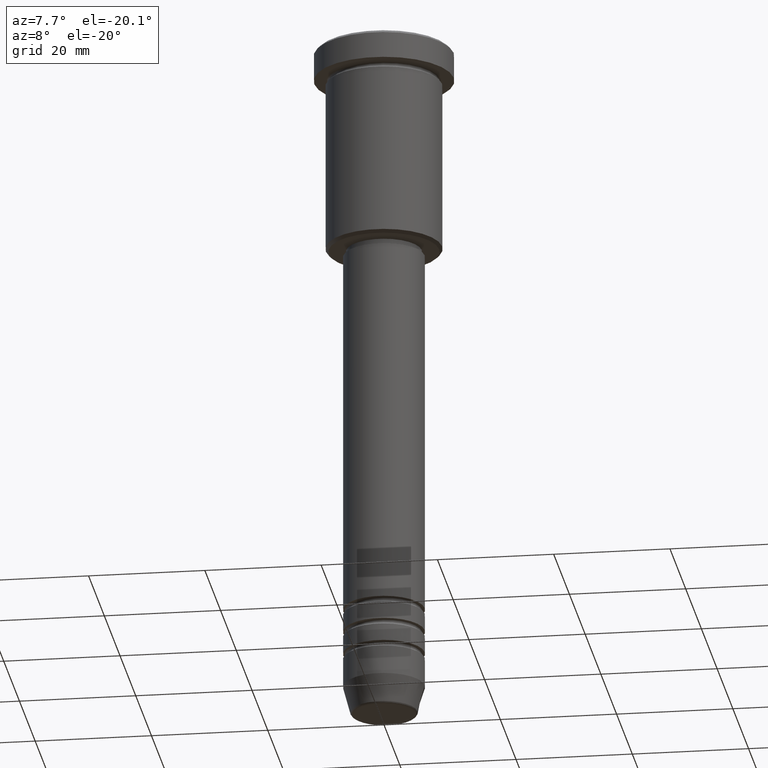
[diagram: clean part render]
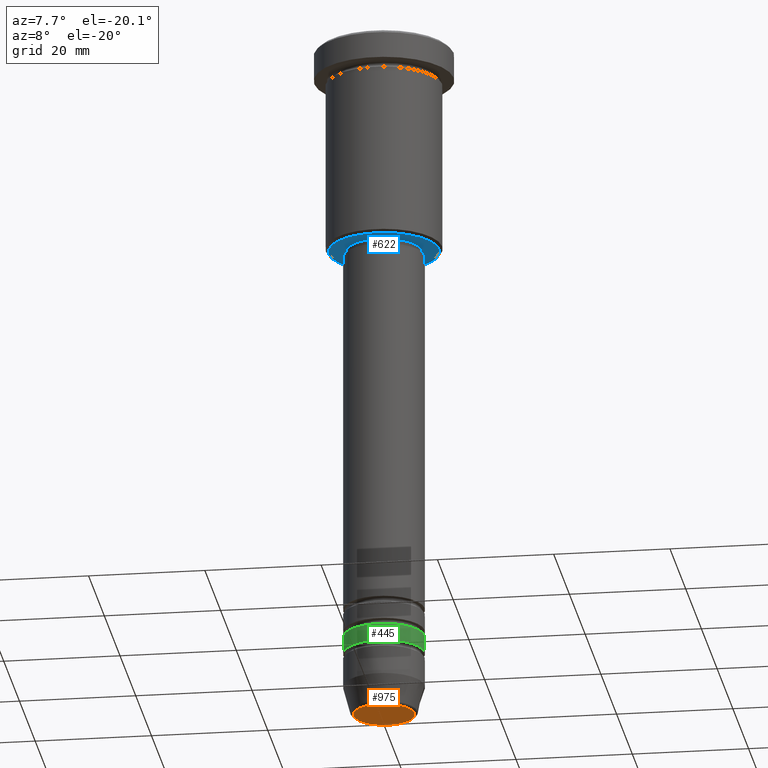
[diagram: same view with three faces highlighted in distinct colors, each labeled with its STEP entity id]
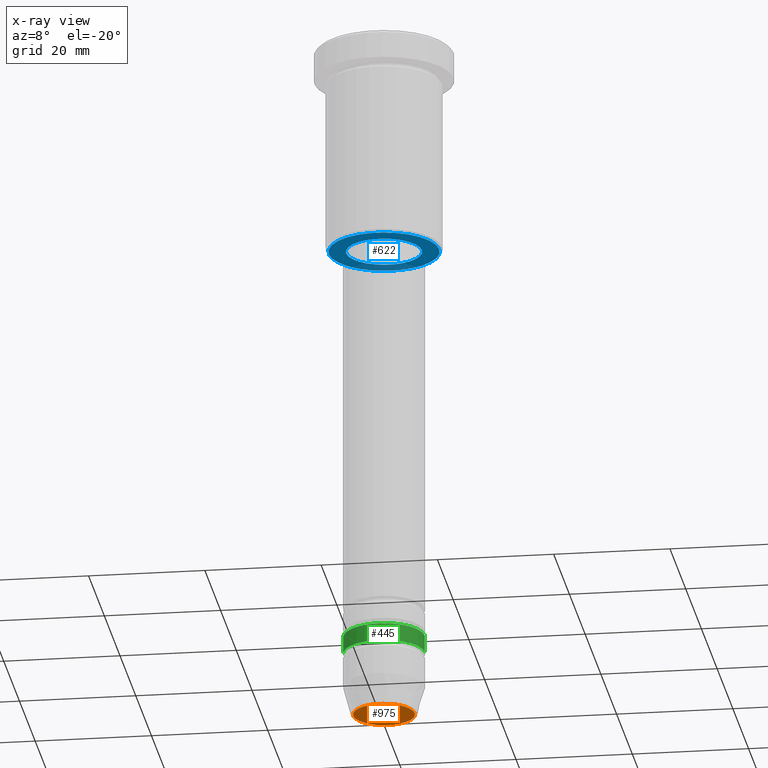
[diagram: x-ray of the same camera — body ghosted, the three highlighted faces saturated]
A machine part, auxiliary view with three faces highlighted in distinct colors.
The next image is the same camera in x-ray (body ghosted, the three faces saturated) — at least one of them is partly hidden behind the body in this view.
Their STEP definitions:

[orange] entity #975 — the highlighted planar face has unit normal (0, -0, 1).
#21 = EDGE_CURVE ( 'NONE', #681, #536, #1000, .T. ) ;
#53 = DIRECTION ( 'NONE',  ( 1.000000000000000000, 0.000000000000000000, 0.000000000000000000 ) ) ;
#83 = ORIENTED_EDGE ( 'NONE', *, *, #773, .T. ) ;
#132 = CARTESIAN_POINT ( 'NONE',  ( -5.276590543854903004, 6.757689212787765916E-16, -120.0000000000000000 ) ) ;
#140 = AXIS2_PLACEMENT_3D ( 'NONE', #1074, #261, #53 ) ;
#229 = DIRECTION ( 'NONE',  ( 1.000000000000000000, 0.000000000000000000, 0.000000000000000000 ) ) ;
#261 = DIRECTION ( 'NONE',  ( 0.000000000000000000, -0.000000000000000000, 1.000000000000000000 ) ) ;
#268 = PLANE ( 'NONE',  #140 ) ;
#432 = EDGE_LOOP ( 'NONE', ( #973, #83 ) ) ;
#536 = VERTEX_POINT ( 'NONE', #132 ) ;
#681 = VERTEX_POINT ( 'NONE', #1093 ) ;
#773 = EDGE_CURVE ( 'NONE', #536, #681, #1073, .T. ) ;
#846 = DIRECTION ( 'NONE',  ( 0.000000000000000000, 0.000000000000000000, -1.000000000000000000 ) ) ;
#927 = DIRECTION ( 'NONE',  ( 1.000000000000000000, 0.000000000000000000, 0.000000000000000000 ) ) ;
#973 = ORIENTED_EDGE ( 'NONE', *, *, #21, .T. ) ;
#975 = ADVANCED_FACE ( 'NONE', ( #1081 ), #268, .F. ) ;
#977 = DIRECTION ( 'NONE',  ( 0.000000000000000000, 0.000000000000000000, -1.000000000000000000 ) ) ;
#1000 = CIRCLE ( 'NONE', #1020, 5.276590543854903004 ) ;
#1020 = AXIS2_PLACEMENT_3D ( 'NONE', #1035, #846, #927 ) ;
#1035 = CARTESIAN_POINT ( 'NONE',  ( 0.000000000000000000, 0.000000000000000000, -120.0000000000000000 ) ) ;
#1057 = AXIS2_PLACEMENT_3D ( 'NONE', #1148, #977, #229 ) ;
#1073 = CIRCLE ( 'NONE', #1057, 5.276590543854903004 ) ;
#1074 = CARTESIAN_POINT ( 'NONE',  ( 0.000000000000000000, 0.000000000000000000, -120.0000000000000000 ) ) ;
#1081 = FACE_OUTER_BOUND ( 'NONE', #432, .T. ) ;
#1093 = CARTESIAN_POINT ( 'NONE',  ( 5.276590543854903004, 0.000000000000000000, -120.0000000000000000 ) ) ;
#1148 = CARTESIAN_POINT ( 'NONE',  ( 0.000000000000000000, 0.000000000000000000, -120.0000000000000000 ) ) ;

[blue] entity #622 — the highlighted planar face has unit normal (0, 0, -1).
#10 = AXIS2_PLACEMENT_3D ( 'NONE', #255, #988, #527 ) ;
#59 = CIRCLE ( 'NONE', #82, 6.500000000000000000 ) ;
#63 = PLANE ( 'NONE',  #863 ) ;
#70 = CARTESIAN_POINT ( 'NONE',  ( 0.000000000000000000, 9.999999999999998224, -36.00000000000000711 ) ) ;
#77 = ORIENTED_EDGE ( 'NONE', *, *, #485, .T. ) ;
#82 = AXIS2_PLACEMENT_3D ( 'NONE', #934, #682, #929 ) ;
#103 = CARTESIAN_POINT ( 'NONE',  ( 9.499999999999966249, 0.000000000000000000, -36.00000000000000711 ) ) ;
#116 = CARTESIAN_POINT ( 'NONE',  ( 6.500000000000000000, 0.000000000000000000, -36.00000000000000711 ) ) ;
#120 = DIRECTION ( 'NONE',  ( -1.000000000000000000, 0.000000000000000000, 0.000000000000000000 ) ) ;
#151 = VERTEX_POINT ( 'NONE', #103 ) ;
#178 = AXIS2_PLACEMENT_3D ( 'NONE', #400, #937, #120 ) ;
#215 = EDGE_CURVE ( 'NONE', #841, #870, #426, .T. ) ;
#232 = AXIS2_PLACEMENT_3D ( 'NONE', #893, #1060, #345 ) ;
#255 = CARTESIAN_POINT ( 'NONE',  ( 0.000000000000000000, 0.000000000000000000, -36.00000000000000711 ) ) ;
#262 = EDGE_LOOP ( 'NONE', ( #1078, #77 ) ) ;
#345 = DIRECTION ( 'NONE',  ( 1.000000000000000000, 0.000000000000000000, 0.000000000000000000 ) ) ;
#400 = CARTESIAN_POINT ( 'NONE',  ( 0.000000000000000000, 0.000000000000000000, -36.00000000000000711 ) ) ;
#426 = CIRCLE ( 'NONE', #232, 6.500000000000000000 ) ;
#435 = DIRECTION ( 'NONE',  ( 0.000000000000000000, 0.000000000000000000, -1.000000000000000000 ) ) ;
#439 = CARTESIAN_POINT ( 'NONE',  ( -9.499999999999966249, 1.194030629168667103E-15, -36.00000000000000711 ) ) ;
#472 = EDGE_CURVE ( 'NONE', #870, #841, #59, .T. ) ;
#485 = EDGE_CURVE ( 'NONE', #1010, #151, #693, .T. ) ;
#527 = DIRECTION ( 'NONE',  ( -1.000000000000000000, 0.000000000000000000, 0.000000000000000000 ) ) ;
#555 = ORIENTED_EDGE ( 'NONE', *, *, #472, .T. ) ;
#622 = ADVANCED_FACE ( 'NONE', ( #971, #886 ), #63, .T. ) ;
#682 = DIRECTION ( 'NONE',  ( -0.000000000000000000, -0.000000000000000000, 1.000000000000000000 ) ) ;
#693 = CIRCLE ( 'NONE', #178, 9.499999999999966249 ) ;
#801 = DIRECTION ( 'NONE',  ( -1.000000000000000000, 0.000000000000000000, -0.000000000000000000 ) ) ;
#841 = VERTEX_POINT ( 'NONE', #1179 ) ;
#863 = AXIS2_PLACEMENT_3D ( 'NONE', #70, #435, #801 ) ;
#865 = CIRCLE ( 'NONE', #10, 9.499999999999966249 ) ;
#870 = VERTEX_POINT ( 'NONE', #116 ) ;
#886 = FACE_BOUND ( 'NONE', #917, .T. ) ;
#893 = CARTESIAN_POINT ( 'NONE',  ( 0.000000000000000000, 0.000000000000000000, -36.00000000000000711 ) ) ;
#917 = EDGE_LOOP ( 'NONE', ( #555, #1082 ) ) ;
#929 = DIRECTION ( 'NONE',  ( 1.000000000000000000, 0.000000000000000000, 0.000000000000000000 ) ) ;
#934 = CARTESIAN_POINT ( 'NONE',  ( 0.000000000000000000, 0.000000000000000000, -36.00000000000000711 ) ) ;
#937 = DIRECTION ( 'NONE',  ( 0.000000000000000000, 0.000000000000000000, -1.000000000000000000 ) ) ;
#971 = FACE_OUTER_BOUND ( 'NONE', #262, .T. ) ;
#988 = DIRECTION ( 'NONE',  ( 0.000000000000000000, 0.000000000000000000, -1.000000000000000000 ) ) ;
#998 = EDGE_CURVE ( 'NONE', #151, #1010, #865, .T. ) ;
#1010 = VERTEX_POINT ( 'NONE', #439 ) ;
#1060 = DIRECTION ( 'NONE',  ( -0.000000000000000000, -0.000000000000000000, 1.000000000000000000 ) ) ;
#1078 = ORIENTED_EDGE ( 'NONE', *, *, #998, .T. ) ;
#1082 = ORIENTED_EDGE ( 'NONE', *, *, #215, .T. ) ;
#1179 = CARTESIAN_POINT ( 'NONE',  ( -6.500000000000000000, 7.960204194457795477E-16, -36.00000000000000711 ) ) ;

[green] entity #445 — the highlighted cylindrical surface (partial cylindrical patch) has radius 7 mm, axis along (-0, -0, 1).
#2 = VERTEX_POINT ( 'NONE', #987 ) ;
#31 = AXIS2_PLACEMENT_3D ( 'NONE', #583, #301, #386 ) ;
#56 = EDGE_CURVE ( 'NONE', #733, #145, #581, .T. ) ;
#110 = CARTESIAN_POINT ( 'NONE',  ( -7.000000000000000888, 8.572527594031474176E-16, 0.000000000000000000 ) ) ;
#145 = VERTEX_POINT ( 'NONE', #560 ) ;
#218 = AXIS2_PLACEMENT_3D ( 'NONE', #766, #225, #856 ) ;
#225 = DIRECTION ( 'NONE',  ( -0.000000000000000000, -0.000000000000000000, 1.000000000000000000 ) ) ;
#280 = AXIS2_PLACEMENT_3D ( 'NONE', #573, #554, #388 ) ;
#301 = DIRECTION ( 'NONE',  ( -0.000000000000000000, -0.000000000000000000, 1.000000000000000000 ) ) ;
#322 = CARTESIAN_POINT ( 'NONE',  ( -7.000000000000000000, 8.572527594031473190E-16, -105.9999999999999858 ) ) ;
#386 = DIRECTION ( 'NONE',  ( 1.000000000000000000, 0.000000000000000000, 0.000000000000000000 ) ) ;
#387 = EDGE_CURVE ( 'NONE', #2, #786, #923, .T. ) ;
#388 = DIRECTION ( 'NONE',  ( 1.000000000000000000, 0.000000000000000000, 0.000000000000000000 ) ) ;
#445 = ADVANCED_FACE ( 'NONE', ( #842 ), #1130, .T. ) ;
#554 = DIRECTION ( 'NONE',  ( -0.000000000000000000, -0.000000000000000000, 1.000000000000000000 ) ) ;
#560 = CARTESIAN_POINT ( 'NONE',  ( 7.000000000000000000, 0.000000000000000000, -105.9999999999999858 ) ) ;
#573 = CARTESIAN_POINT ( 'NONE',  ( 0.000000000000000000, 0.000000000000000000, -105.9999999999999858 ) ) ;
#581 = LINE ( 'NONE', #745, #660 ) ;
#583 = CARTESIAN_POINT ( 'NONE',  ( 0.000000000000000000, 0.000000000000000000, -108.9999999999999716 ) ) ;
#656 = DIRECTION ( 'NONE',  ( -0.000000000000000000, -0.000000000000000000, 1.000000000000000000 ) ) ;
#660 = VECTOR ( 'NONE', #656, 1000.000000000000000 ) ;
#698 = EDGE_CURVE ( 'NONE', #2, #733, #774, .T. ) ;
#733 = VERTEX_POINT ( 'NONE', #939 ) ;
#735 = VECTOR ( 'NONE', #909, 1000.000000000000000 ) ;
#745 = CARTESIAN_POINT ( 'NONE',  ( 7.000000000000000888, 0.000000000000000000, 0.000000000000000000 ) ) ;
#766 = CARTESIAN_POINT ( 'NONE',  ( 0.000000000000000000, 0.000000000000000000, 0.000000000000000000 ) ) ;
#774 = CIRCLE ( 'NONE', #31, 7.000000000000000888 ) ;
#786 = VERTEX_POINT ( 'NONE', #322 ) ;
#796 = CIRCLE ( 'NONE', #280, 7.000000000000000000 ) ;
#842 = FACE_OUTER_BOUND ( 'NONE', #1011, .T. ) ;
#856 = DIRECTION ( 'NONE',  ( 1.000000000000000000, 0.000000000000000000, 0.000000000000000000 ) ) ;
#860 = ORIENTED_EDGE ( 'NONE', *, *, #1164, .F. ) ;
#909 = DIRECTION ( 'NONE',  ( -0.000000000000000000, -0.000000000000000000, 1.000000000000000000 ) ) ;
#922 = ORIENTED_EDGE ( 'NONE', *, *, #56, .T. ) ;
#923 = LINE ( 'NONE', #110, #735 ) ;
#939 = CARTESIAN_POINT ( 'NONE',  ( 7.000000000000000888, 0.000000000000000000, -108.9999999999999716 ) ) ;
#987 = CARTESIAN_POINT ( 'NONE',  ( -7.000000000000000888, 8.572527594031474176E-16, -108.9999999999999716 ) ) ;
#1008 = ORIENTED_EDGE ( 'NONE', *, *, #387, .F. ) ;
#1011 = EDGE_LOOP ( 'NONE', ( #1008, #1136, #922, #860 ) ) ;
#1130 = CYLINDRICAL_SURFACE ( 'NONE', #218, 7.000000000000000888 ) ;
#1136 = ORIENTED_EDGE ( 'NONE', *, *, #698, .T. ) ;
#1164 = EDGE_CURVE ( 'NONE', #786, #145, #796, .T. ) ;